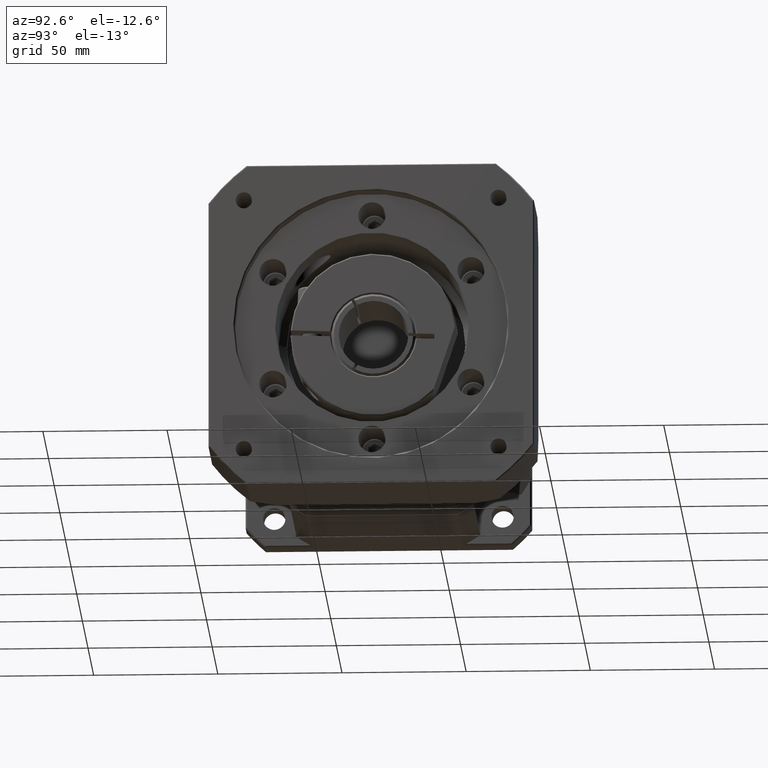
[diagram: clean part render]
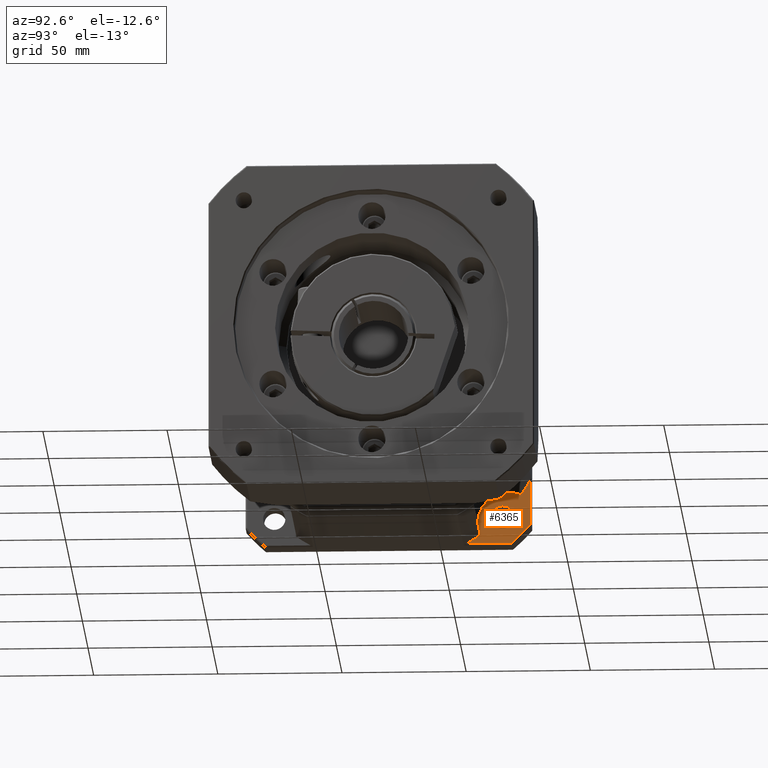
[diagram: same view with one face highlighted and labeled with its STEP entity id]
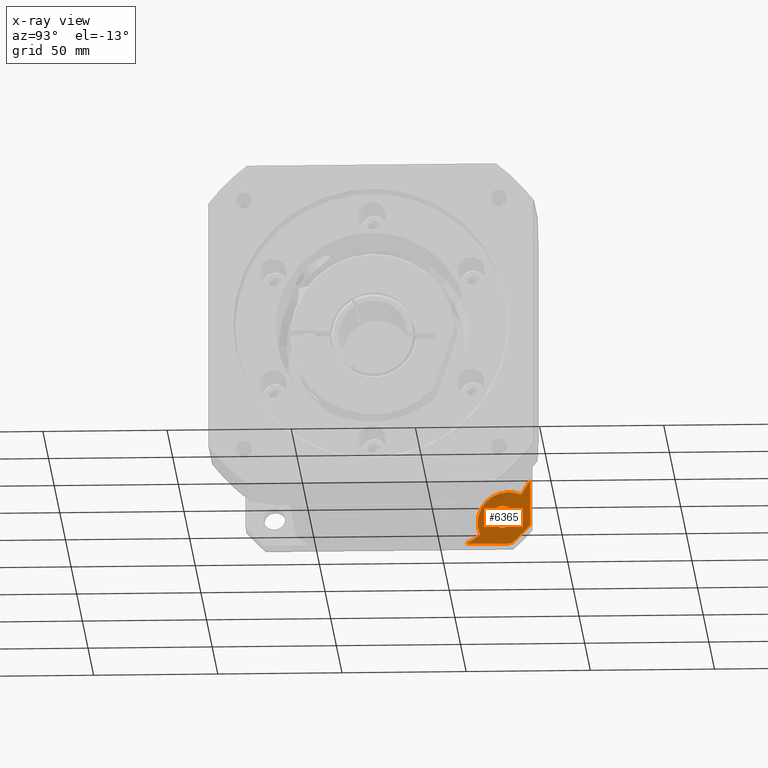
[diagram: x-ray of the same camera — body ghosted, the highlighted face saturated]
A machine part, auxiliary view. The second image highlights one B-rep face of the part: STEP entity #6365.
The next image is the same camera in x-ray: the body ghosted, the highlighted face saturated — about 3% of this face is hidden behind the body in this view.
In plain terms, the highlighted planar face has unit normal (1, 0, -0).
Its self-contained STEP definition (entity closure, byte-faithful):
#311=LINE('',#10894,#618);
#314=LINE('',#10910,#621);
#618=VECTOR('',#8440,18.2691012760745);
#621=VECTOR('',#8449,18.2691012760745);
#1010=PLANE('',#7037);
#1224=FACE_BOUND('',#2130,.T.);
#1563=FACE_OUTER_BOUND('',#2129,.T.);
#2129=EDGE_LOOP('',(#4970,#4971,#4972,#4973,#4974,#4975));
#2130=EDGE_LOOP('',(#4976));
#2598=CIRCLE('',#7036,75.5);
#2599=CIRCLE('',#7038,65.);
#2600=CIRCLE('',#7039,12.5);
#2601=CIRCLE('',#7040,65.);
#2602=CIRCLE('',#7041,4.5);
#3078=VERTEX_POINT('',#10892);
#3079=VERTEX_POINT('',#10893);
#3084=VERTEX_POINT('',#10907);
#3085=VERTEX_POINT('',#10909);
#3086=VERTEX_POINT('',#10919);
#3087=VERTEX_POINT('',#10921);
#3088=VERTEX_POINT('',#10924);
#3764=EDGE_CURVE('',#3078,#3079,#311,.T.);
#3770=EDGE_CURVE('',#3084,#3085,#314,.T.);
#3773=EDGE_CURVE('',#3085,#3078,#2598,.T.);
#3774=EDGE_CURVE('',#3086,#3084,#2599,.T.);
#3775=EDGE_CURVE('',#3087,#3086,#2600,.T.);
#3776=EDGE_CURVE('',#3079,#3087,#2601,.T.);
#3777=EDGE_CURVE('',#3088,#3088,#2602,.T.);
#4970=ORIENTED_EDGE('',*,*,#3764,.F.);
#4971=ORIENTED_EDGE('',*,*,#3773,.F.);
#4972=ORIENTED_EDGE('',*,*,#3770,.F.);
#4973=ORIENTED_EDGE('',*,*,#3774,.F.);
#4974=ORIENTED_EDGE('',*,*,#3775,.F.);
#4975=ORIENTED_EDGE('',*,*,#3776,.F.);
#4976=ORIENTED_EDGE('',*,*,#3777,.T.);
#6365=ADVANCED_FACE('',(#1563,#1224),#1010,.T.);
#7036=AXIS2_PLACEMENT_3D('',#10917,#8454,#8455);
#7037=AXIS2_PLACEMENT_3D('',#10918,#8456,#8457);
#7038=AXIS2_PLACEMENT_3D('',#10920,#8458,#8459);
#7039=AXIS2_PLACEMENT_3D('',#10922,#8460,#8461);
#7040=AXIS2_PLACEMENT_3D('',#10923,#8462,#8463);
#7041=AXIS2_PLACEMENT_3D('',#10925,#8464,#8465);
#8440=DIRECTION('',(6.1062266354384E-16,-1.,3.02596112418109E-16));
#8449=DIRECTION('',(-1.15585299033076E-15,-3.7982901847899E-16,-1.));
#8454=DIRECTION('center_axis',(-1.,-6.1062266354384E-16,1.15585299033076E-15));
#8455=DIRECTION('ref_axis',(-1.15585299033076E-15,-5.34294830600751E-16,
-1.));
#8456=DIRECTION('center_axis',(1.,6.1062266354384E-16,-1.15585299033076E-15));
#8457=DIRECTION('ref_axis',(-1.4210854715202E-15,0.,-1.));
#8458=DIRECTION('center_axis',(1.,6.1062266354384E-16,-1.15585299033076E-15));
#8459=DIRECTION('ref_axis',(1.15585299033076E-15,5.34294830600751E-16,1.));
#8460=DIRECTION('center_axis',(-1.,-6.1062266354384E-16,1.15585299033076E-15));
#8461=DIRECTION('ref_axis',(-1.15585299033076E-15,-6.56759510515486E-16,
-1.));
#8462=DIRECTION('center_axis',(1.,6.1062266354384E-16,-1.15585299033076E-15));
#8463=DIRECTION('ref_axis',(1.15585299033076E-15,5.34294830600751E-16,1.));
#8464=DIRECTION('center_axis',(-1.,-6.1062266354384E-16,1.15585299033076E-15));
#8465=DIRECTION('ref_axis',(1.15585299033076E-15,6.56759510515486E-16,1.));
#10892=CARTESIAN_POINT('',(-72.5513956068894,-73.7344257866899,-161.9535040948));
#10893=CARTESIAN_POINT('',(-72.5513956068894,-92.0035270627644,-161.9535040948));
#10894=CARTESIAN_POINT('',(-72.5513956068894,-94.4945257663911,-161.9535040948));
#10907=CARTESIAN_POINT('',(-72.5513956068894,-66.2445257663911,-136.194502798427));
#10909=CARTESIAN_POINT('',(-72.5513956068894,-66.2445257663911,-154.463604074501));
#10910=CARTESIAN_POINT('',(-72.5513956068893,-66.244525766391,-76.2035040948));
#10917=CARTESIAN_POINT('Origin',(-72.5513956068893,-123.244525766391,-104.9535040948));
#10918=CARTESIAN_POINT('Origin',(-72.5513956068893,-123.244525766391,-104.9535040948));
#10919=CARTESIAN_POINT('',(-72.5513956068894,-69.7936425229074,-141.940029756066));
#10920=CARTESIAN_POINT('Origin',(-72.5513956068893,-123.244525766391,-104.9535040948));
#10921=CARTESIAN_POINT('',(-72.5513956068894,-86.2580001051251,-158.404387338284));
#10922=CARTESIAN_POINT('Origin',(-72.5513956068894,-74.8077112551125,-153.390318606078));
#10923=CARTESIAN_POINT('Origin',(-72.5513956068893,-123.244525766391,-104.9535040948));
#10924=CARTESIAN_POINT('',(-72.5513956068894,-77.2825849892655,-155.415444871926));
#10925=CARTESIAN_POINT('Origin',(-72.5513956068894,-77.2825849892655,-150.915444871926));